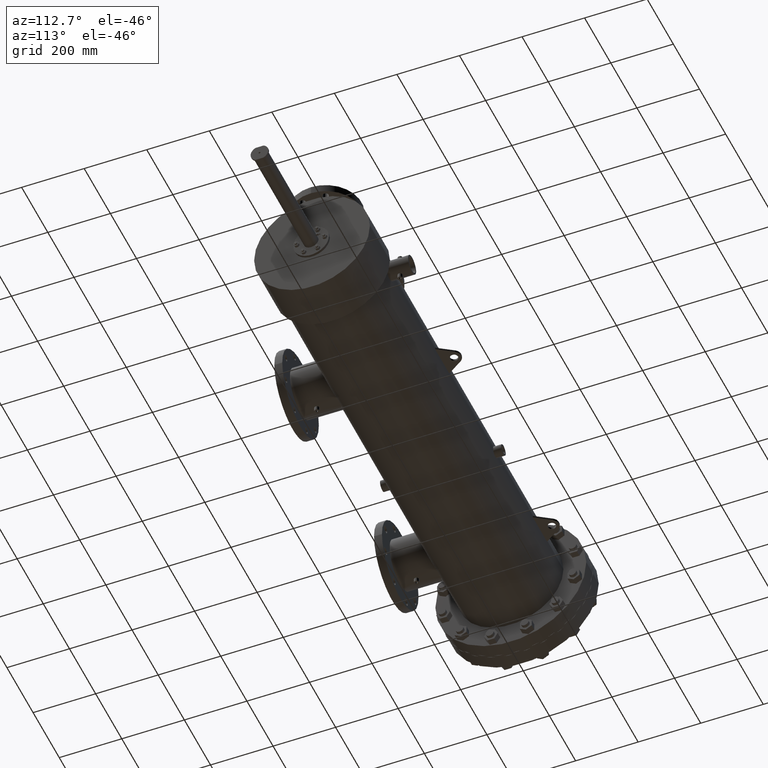
[diagram: clean part render]
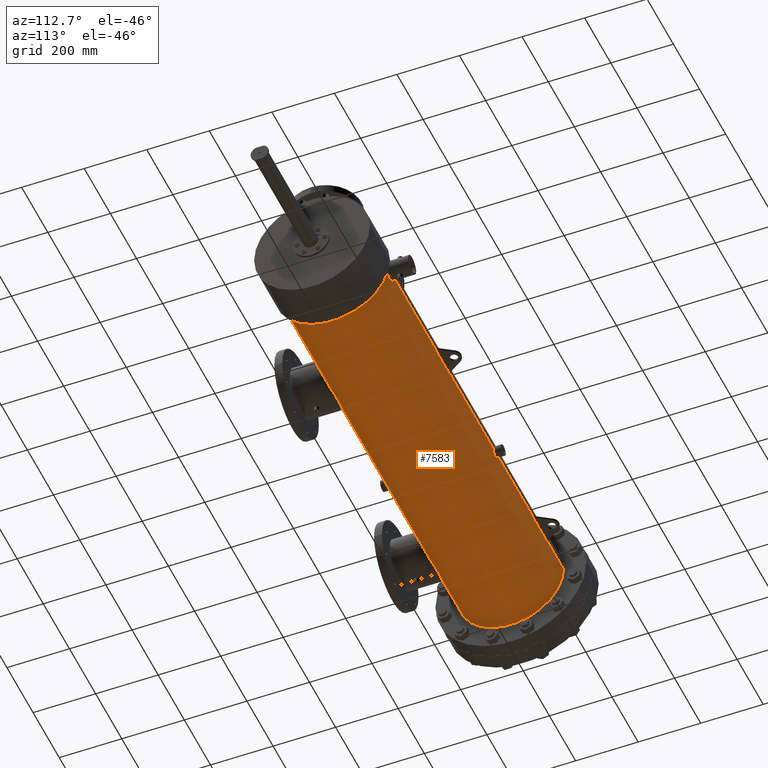
[diagram: same view with one face highlighted and labeled with its STEP entity id]
A machine part, auxiliary view. The second image highlights one B-rep face of the part: STEP entity #7583.
In plain terms, the highlighted cylindrical surface (partial cylindrical patch) has radius 168.225 mm, axis along (-1, 0, -0).
Its self-contained STEP definition (entity closure, byte-faithful):
#32 = CARTESIAN_POINT ( 'NONE',  ( 23.50488859684173804, -6.620102290366491005, -6.032487668760175558E-24 ) ) ;
#82 = CARTESIAN_POINT ( 'NONE',  ( 56.08674554668400702, 6.520454044656337267, -1.177501087345410591 ) ) ;
#90 = CARTESIAN_POINT ( 'NONE',  ( -3.560000048720177279, -6.620102290366491005, 0.0000000000000000000 ) ) ;
#113 = CARTESIAN_POINT ( 'NONE',  ( 41.61151093272998480, -5.797475832359252124, -3.196850393700785276 ) ) ;
#131 = CARTESIAN_POINT ( 'NONE',  ( 23.50488859684173804, 6.625966594306465396, 8.110877930450264990E-16 ) ) ;
#132 = CARTESIAN_POINT ( 'NONE',  ( 8.458497499643724993, -6.599050712015190001, -0.5302748627339023413 ) ) ;
#162 = CARTESIAN_POINT ( 'NONE',  ( 54.97152174659160551, 6.578759170063835704, -0.7899529883813617426 ) ) ;
#172 = VERTEX_POINT ( 'NONE', #20373 ) ;
#190 = CARTESIAN_POINT ( 'NONE',  ( 41.50584512929513892, -5.797475832359253012, -3.196850393700785276 ) ) ;
#205 = CARTESIAN_POINT ( 'NONE',  ( 23.97743471108273638, 6.592986842050819085, -0.6601581762026514921 ) ) ;
#206 = CARTESIAN_POINT ( 'NONE',  ( 24.44744687340119782, -6.587888219321350824, -0.6524945692989182477 ) ) ;
#232 = CARTESIAN_POINT ( 'NONE',  ( 57.06061548861068644, 6.624570948040195972, -0.1373760742247549516 ) ) ;
#259 = CARTESIAN_POINT ( 'NONE',  ( 41.82262287730102912, -5.800358885863328595, -3.191636252119037565 ) ) ;
#265 = ORIENTED_EDGE ( 'NONE', *, *, #763, .F. ) ;
#283 = CARTESIAN_POINT ( 'NONE',  ( 23.74128854975237601, 6.605202361473962114, -0.5250247153202211026 ) ) ;
#300 =( BOUNDED_CURVE ( )  B_SPLINE_CURVE ( 3, ( #17288, #11953, #6506, #19174 ),
 .UNSPECIFIED., .F., .T. ) 
 B_SPLINE_CURVE_WITH_KNOTS ( ( 4, 4 ),
 ( 6.264310662435097043, 6.283185307179586232 ),
 .UNSPECIFIED. ) 
 CURVE ( )  GEOMETRIC_REPRESENTATION_ITEM ( )  RATIONAL_B_SPLINE_CURVE ( ( 1.000000000000000000, 0.9999703125358196942, 0.9999703125358196942, 1.000000000000000000 ) ) 
 REPRESENTATION_ITEM ( '' )  );
#310 = CARTESIAN_POINT ( 'NONE',  ( 56.18281250892540157, 6.523909394751140844, -1.158310990636541637 ) ) ;
#336 = CARTESIAN_POINT ( 'NONE',  ( 42.11298669847418097, -5.819053629985806886, -3.157386128076007381 ) ) ;
#387 = CARTESIAN_POINT ( 'NONE',  ( 56.25741023164413690, 6.527948847442829106, -1.135635292516765649 ) ) ;
#413 = CARTESIAN_POINT ( 'NONE',  ( 42.13940472002043691, -5.821389419539924504, -3.153076439821033361 ) ) ;
#417 = EDGE_CURVE ( 'NONE', #20144, #17076, #3465, .T. ) ;
#436 = CARTESIAN_POINT ( 'NONE',  ( 23.50941262865929460, 6.625486252460868641, -0.09137433679954110044 ) ) ;
#472 = CARTESIAN_POINT ( 'NONE',  ( 54.67466053902920464, 6.625966594306467172, -0.01976735570703604117 ) ) ;
#476 = CARTESIAN_POINT ( 'NONE',  ( 23.54158097512100412, -6.616338944060670357, -0.2243047589684323551 ) ) ;
#533 = CARTESIAN_POINT ( 'NONE',  ( 8.848901996202322096, -6.421611165752963757, -1.612041120261620497 ) ) ;
#560 = CARTESIAN_POINT ( 'NONE',  ( 23.77727731653486742, -6.596979895608064304, -0.5531363833927316342 ) ) ;
#579 = CARTESIAN_POINT ( 'NONE',  ( 44.51818473635211149, -6.484985415012319621, -1.331861133549546050 ) ) ;
#580 = CARTESIAN_POINT ( 'NONE',  ( 57.13510650272986169, -6.620102290366491005, 0.0000000000000000000 ) ) ;
#616 = DIRECTION ( 'NONE',  ( -1.000000000000000000, 6.844189882992511126E-19, -0.0000000000000000000 ) ) ;
#684 = CARTESIAN_POINT ( 'NONE',  ( 24.87493807584727534, -6.617652266591466770, -0.1814460603054542376 ) ) ;
#763 = EDGE_CURVE ( 'NONE', #10833, #6770, #14061, .T. ) ;
#765 = CARTESIAN_POINT ( 'NONE',  ( 24.89858938424331569, -6.620102290366490116, -0.04604400683641205611 ) ) ;
#776 = FACE_OUTER_BOUND ( 'NONE', #7104, .T. ) ;
#778 = CARTESIAN_POINT ( 'NONE',  ( -3.560000048720177279, 6.625966594306465396, 8.110877930450044109E-16 ) ) ;
#826 = EDGE_CURVE ( 'NONE', #3377, #20319, #16651, .T. ) ;
#902 = B_SPLINE_CURVE_WITH_KNOTS ( 'NONE', 3,
 ( #14520, #7324, #12711, #7171, #7089, #7246, #1819, #3836, #21327, #16308, #8966, #9046, #23119, #21482, #1746, #10778, #162, #16145, #15980, #3540, #5475, #19800, #21558, #12635, #14744, #14893, #9508, #4226, #5699, #16383, #472, #9432 ),
 .UNSPECIFIED., .F., .F.,
 ( 4, 2, 2, 2, 2, 2, 2, 2, 2, 2, 2, 2, 2, 2, 2, 4 ),
 ( 0.09523987758173137197, 0.1011929631675068386, 0.1026812345639507018, 0.1041695059603945650, 0.1071460487532816808, 0.1101225915461687827, 0.1130991343390558845, 0.1190522199248306434, 0.1220287627177180229, 0.1250053055106054023, 0.1309583910963805220, 0.1339349338892680819, 0.1369114766821556417, 0.1398880194750431738, 0.1413762908714869537, 0.1428645622679307337 ),
 .UNSPECIFIED. ) ;
#1143 = DIRECTION ( 'NONE',  ( -1.000000000000000000, 6.844189882992511126E-19, -0.0000000000000000000 ) ) ;
#1171 = CARTESIAN_POINT ( 'NONE',  ( 38.43324024563086994, -6.611153716373257438, -0.3452022212319473260 ) ) ;
#1207 = CARTESIAN_POINT ( 'NONE',  ( 38.12056066008186406, 6.625966594306465396, 8.110877930450044109E-16 ) ) ;
#1235 = EDGE_CURVE ( 'NONE', #10833, #2716, #4627, .T. ) ;
#1245 = CARTESIAN_POINT ( 'NONE',  ( 38.70563028805842265, -6.484630072089784036, -1.333589315135872866 ) ) ;
#1328 = CARTESIAN_POINT ( 'NONE',  ( 38.45849749964372677, -6.599050712015188225, -0.5302748627339016751 ) ) ;
#1341 = CARTESIAN_POINT ( 'NONE',  ( 24.89858938424332635, 6.625966594306465396, 8.110878030419603920E-16 ) ) ;
#1373 = VERTEX_POINT ( 'NONE', #32 ) ;
#1444 = CARTESIAN_POINT ( 'NONE',  ( 24.24728875340355216, 6.589322390407926555, -0.6957398949591004911 ) ) ;
#1569 = CARTESIAN_POINT ( 'NONE',  ( 14.80836132643077008, -6.620102290366491893, -0.02680007013940666205 ) ) ;
#1582 = CARTESIAN_POINT ( 'NONE',  ( 8.682360274922663379, 6.625573349192247719, -0.08333766296635791715 ) ) ;
#1645 = CARTESIAN_POINT ( 'NONE',  ( 11.61151093272998125, -5.797475832359250347, -3.196850393700789272 ) ) ;
#1658 = CARTESIAN_POINT ( 'NONE',  ( 8.681841644538836889, 6.624786893987155700, -0.1250000000000000000 ) ) ;
#1711 = CARTESIAN_POINT ( 'NONE',  ( 11.61151093272998125, -5.797475832359250347, -3.196850393700789272 ) ) ;
#1726 = CARTESIAN_POINT ( 'NONE',  ( 14.20562189244916240, -6.350917350832347985, -1.871112581533346253 ) ) ;
#1746 = CARTESIAN_POINT ( 'NONE',  ( 55.08070038371693045, 6.564526436030624801, -0.9017531032061640861 ) ) ;
#1768 = CARTESIAN_POINT ( 'NONE',  ( 39.42786742657646215, -6.194519534056561305, -2.337127592951408150 ) ) ;
#1800 = CARTESIAN_POINT ( 'NONE',  ( 14.14418897179037771, -6.326015614562388478, -1.953443615166007508 ) ) ;
#1819 = CARTESIAN_POINT ( 'NONE',  ( 55.54214674748667591, 6.525222015275412346, -1.150805632916530374 ) ) ;
#1875 = VECTOR ( 'NONE', #17906, 39.37007874015748143 ) ;
#1885 = CARTESIAN_POINT ( 'NONE',  ( 13.68125322271369981, -6.155570517251900853, -2.436939225560617039 ) ) ;
#1896 = CARTESIAN_POINT ( 'NONE',  ( 56.84460591252498318, 6.589174646119801082, -0.6978916550197512558 ) ) ;
#1915 = VECTOR ( 'NONE', #21263, 39.37007874015748143 ) ;
#1932 = CARTESIAN_POINT ( 'NONE',  ( 39.31841610319980873, -6.234203456254958198, -2.228053302658159485 ) ) ;
#1938 = DIRECTION ( 'NONE',  ( -1.000000000000000000, 6.844189882992511126E-19, -0.0000000000000000000 ) ) ;
#1951 = CARTESIAN_POINT ( 'NONE',  ( 8.442913355982932799, -6.606510702401973134, -0.4249192809880080746 ) ) ;
#1979 = CARTESIAN_POINT ( 'NONE',  ( 57.06836132643076809, 6.625966594306465396, -0.03911332988375494646 ) ) ;
#2003 = EDGE_CURVE ( 'NONE', #1373, #12685, #19336, .T. ) ;
#2026 = CARTESIAN_POINT ( 'NONE',  ( 23.91408418097299915, 6.595449943625925293, -0.6351146320809101242 ) ) ;
#2095 = CARTESIAN_POINT ( 'NONE',  ( 24.66138846624714631, -6.599336338511792910, -0.5242604568618984828 ) ) ;
#2119 = CARTESIAN_POINT ( 'NONE',  ( 57.06836132643076098, 6.625966594306465396, 8.110878010276941979E-16 ) ) ;
#2179 = CARTESIAN_POINT ( 'NONE',  ( 23.83352051008775518, 6.599462144512529882, -0.5920647792020360400 ) ) ;
#2231 = CARTESIAN_POINT ( 'NONE',  ( 43.72031615880174371, -6.168818014587252208, -2.403220672507317524 ) ) ;
#2304 = CARTESIAN_POINT ( 'NONE',  ( 42.45004939783472508, -5.856940381825093134, -3.086694245763230260 ) ) ;
#2330 = CARTESIAN_POINT ( 'NONE',  ( 24.89407026535599243, -6.619622278263719295, -0.09157741047934143952 ) ) ;
#2385 = CARTESIAN_POINT ( 'NONE',  ( 42.03378857251338729, -5.812588637926357826, -3.169287727140987165 ) ) ;
#2519 = CARTESIAN_POINT ( 'NONE',  ( 23.56662467264301952, -6.613885827898545067, -0.2876555103999025031 ) ) ;
#2591 = VERTEX_POINT ( 'NONE', #10228 ) ;
#2716 = VERTEX_POINT ( 'NONE', #3688 ) ;
#2776 = EDGE_CURVE ( 'NONE', #15661, #8361, #12442, .T. ) ;
#2784 = VERTEX_POINT ( 'NONE', #21776 ) ;
#2941 = AXIS2_PLACEMENT_3D ( 'NONE', #23012, #17718, #6782 ) ;
#2982 = CARTESIAN_POINT ( 'NONE',  ( 38.41990159771538771, -6.617567481049119849, -0.2120127386396016000 ) ) ;
#3082 = DIRECTION ( 'NONE',  ( -1.000000000000000000, 6.844189882992511126E-19, -0.0000000000000000000 ) ) ;
#3159 = CARTESIAN_POINT ( 'NONE',  ( -3.560000048720177279, 6.625966594306465396, 8.110877930450044109E-16 ) ) ;
#3172 = CARTESIAN_POINT ( 'NONE',  ( 24.51037399254640547, 6.596401265655883250, -0.6251940956072455924 ) ) ;
#3184 = CARTESIAN_POINT ( 'NONE',  ( 42.37171068800930129, 6.625966594306467172, -0.04166975928529399742 ) ) ;
#3377 = VERTEX_POINT ( 'NONE', #21530 ) ;
#3439 = CARTESIAN_POINT ( 'NONE',  ( 8.446569208148059005, -6.604758572881263667, -0.4513363430929743791 ) ) ;
#3465 =( BOUNDED_CURVE ( )  B_SPLINE_CURVE ( 3, ( #1207, #8299, #13988, #20823 ),
 .UNSPECIFIED., .F., .F. ) 
 B_SPLINE_CURVE_WITH_KNOTS ( ( 4, 4 ),
 ( 3.141592653589793116, 3.160467298334282304 ),
 .UNSPECIFIED. ) 
 CURVE ( )  GEOMETRIC_REPRESENTATION_ITEM ( )  RATIONAL_B_SPLINE_CURVE ( ( 1.000000000000000000, 0.9999703125358196942, 0.9999703125358196942, 1.000000000000000000 ) ) 
 REPRESENTATION_ITEM ( '' )  );
#3490 = CARTESIAN_POINT ( 'NONE',  ( 39.87367233311466919, -6.052076936726394685, -2.683735438995472844 ) ) ;
#3508 = CARTESIAN_POINT ( 'NONE',  ( 10.57302537146444266, -5.888882388096578602, -3.025276955871192275 ) ) ;
#3524 = CARTESIAN_POINT ( 'NONE',  ( 13.21989014815742003, -6.015685269396247925, -2.764743509177873815 ) ) ;
#3540 = CARTESIAN_POINT ( 'NONE',  ( 54.83311750035764476, 6.599033928541453875, -0.6002302114898547813 ) ) ;
#3586 = LINE ( 'NONE', #5116, #1915 ) ;
#3603 = CARTESIAN_POINT ( 'NONE',  ( 14.72332027173323254, -6.579449509813998453, -0.7400193279973804605 ) ) ;
#3629 = CIRCLE ( 'NONE', #13687, 6.623034442336478200 ) ;
#3642 = CARTESIAN_POINT ( 'NONE',  ( 40.00653301531651351, -6.015277614651655114, -2.765249717527959561 ) ) ;
#3663 = CARTESIAN_POINT ( 'NONE',  ( 10.47527249311594844, -5.906974090967560542, -2.989914688120853370 ) ) ;
#3673 = CARTESIAN_POINT ( 'NONE',  ( 14.47290145271272088, -6.464824604676132402, -1.426552127290123817 ) ) ;
#3684 = CARTESIAN_POINT ( 'NONE',  ( 56.78425670235407807, 6.580552458167434615, -0.7744204111836680005 ) ) ;
#3688 = CARTESIAN_POINT ( 'NONE',  ( 3.750000000000002220, -6.620102290366490116, 0.0000000000000000000 ) ) ;
#3713 = CARTESIAN_POINT ( 'NONE',  ( 40.18988406736141172, -5.968487511225737840, -2.865258985346507803 ) ) ;
#3729 = CARTESIAN_POINT ( 'NONE',  ( 24.35986291008730120, -6.585200551086909826, -0.6790526532030990436 ) ) ;
#3753 = CARTESIAN_POINT ( 'NONE',  ( 56.41908043817665686, 6.539878593217029135, -1.064426948728601108 ) ) ;
#3786 = CARTESIAN_POINT ( 'NONE',  ( 39.01800945257920716, -6.350667287042273124, -1.871971490222196222 ) ) ;
#3791 = CARTESIAN_POINT ( 'NONE',  ( -3.560000048720177279, -6.620102290366491005, 0.0000000000000000000 ) ) ;
#3801 = CARTESIAN_POINT ( 'NONE',  ( 23.64860357056294760, 6.612374843741463337, -0.4244629343774455332 ) ) ;
#3825 = VERTEX_POINT ( 'NONE', #580 ) ;
#3829 = CARTESIAN_POINT ( 'NONE',  ( 56.90800261172798002, 6.598848713713838521, -0.5997277398349427635 ) ) ;
#3836 = CARTESIAN_POINT ( 'NONE',  ( 55.48593658519036609, 6.528221546079866933, -1.133718356959874773 ) ) ;
#3910 = CARTESIAN_POINT ( 'NONE',  ( 56.02838857458402089, 6.518787042648118479, -1.186688244064823872 ) ) ;
#3934 = CARTESIAN_POINT ( 'NONE',  ( 43.08242669401168001, -5.980909486670548780, -2.838832285646996301 ) ) ;
#4067 = CARTESIAN_POINT ( 'NONE',  ( 23.95584344390548281, -6.587895188303220628, -0.6524243268700191667 ) ) ;
#4074 = ORIENTED_EDGE ( 'NONE', *, *, #8452, .T. ) ;
#4082 = CARTESIAN_POINT ( 'NONE',  ( 44.69735817273798517, -6.567185395175028084, -0.8416167304808501726 ) ) ;
#4153 = CARTESIAN_POINT ( 'NONE',  ( 23.89255311788790337, -6.590458726938506651, -0.6261718383470139537 ) ) ;
#4169 = CARTESIAN_POINT ( 'NONE',  ( 42.89330600153515860, -5.937228280313488149, -2.929093177916498369 ) ) ;
#4185 = B_SPLINE_CURVE_WITH_KNOTS ( 'NONE', 3,
 ( #16430, #16189, #18030, #12834, #14489, #205, #12675, #2026, #21902, #20141, #2179, #18185, #283, #7446, #12907, #3801, #19841, #7293, #21740, #9082, #16271, #5596, #18108, #436, #14417, #131 ),
 .UNSPECIFIED., .F., .F.,
 ( 4, 2, 2, 2, 2, 2, 2, 2, 2, 2, 2, 2, 4 ),
 ( 0.05537655679381945500, 0.05883842627888277027, 0.06056936102141442790, 0.06230029576394608554, 0.06403123050647774317, 0.06576216524900940774, 0.06922403473407272301, 0.07095496947660437370, 0.07268590421913603827, 0.07614777370419933966, 0.07787870844673105974, 0.07960964318926277983, 0.08307151267432628938 ),
 .UNSPECIFIED. ) ;
#4226 = CARTESIAN_POINT ( 'NONE',  ( 54.67856430937618484, 6.625261982983682074, -0.09855547957554304517 ) ) ;
#4230 = CARTESIAN_POINT ( 'NONE',  ( 23.50488859684173804, -6.620102290366491005, -6.032487668760175558E-24 ) ) ;
#4415 = EDGE_CURVE ( 'NONE', #9405, #2784, #9698, .T. ) ;
#4627 = LINE ( 'NONE', #3791, #11870 ) ;
#4770 = CARTESIAN_POINT ( 'NONE',  ( 38.46773001366667444, -6.594643624306864460, -0.5824838443216308059 ) ) ;
#4874 = CARTESIAN_POINT ( 'NONE',  ( 24.62677159653190628, 6.602797274206952949, -0.5540816505432620831 ) ) ;
#4945 = CARTESIAN_POINT ( 'NONE',  ( 24.66194318814428499, 6.605183341943915210, -0.5252884271496975899 ) ) ;
#4951 = B_SPLINE_CURVE_WITH_KNOTS ( 'NONE', 3,
 ( #2119, #1979, #21772, #232, #14590, #16218, #12859, #10769, #7392, #17900, #7163, #3829, #5469, #1896, #14367, #3684, #16058, #11083, #16302, #18057, #14445, #12703, #18213, #3753, #16139, #5386, #21693, #387, #310, #82, #17982, #3910, #7242, #5694, #7320, #12630 ),
 .UNSPECIFIED., .F., .F.,
 ( 4, 2, 2, 2, 2, 2, 2, 2, 2, 2, 2, 2, 2, 2, 2, 2, 2, 4 ),
 ( 0.04763153616215690112, 0.05060705750088081989, 0.05209481817024277928, 0.05358257883960473866, 0.05953362151705244437, 0.06250914285577630070, 0.06548466419450015008, 0.06846018553322399947, 0.06994794620258593110, 0.07143570687194783497, 0.07738674954939414596, 0.08036227088811730146, 0.08185003155747858083, 0.08333779222683987409, 0.08928883490428562997, 0.09077659557364722853, 0.09226435624300882710, 0.09523987758173137197 ),
 .UNSPECIFIED. ) ;
#5020 = ORIENTED_EDGE ( 'NONE', *, *, #5941, .T. ) ;
#5073 = LINE ( 'NONE', #19938, #10636 ) ;
#5077 = VERTEX_POINT ( 'NONE', #16628 ) ;
#5110 = CARTESIAN_POINT ( 'NONE',  ( 24.20173899054253397, 6.589204599506174986, -0.6968503937007914928 ) ) ;
#5116 = CARTESIAN_POINT ( 'NONE',  ( -3.560000048720177279, 6.624786893987156589, -0.1250000000000000000 ) ) ;
#5157 = CARTESIAN_POINT ( 'NONE',  ( 12.89330600153515860, -5.937228280313484596, -2.929093177916500590 ) ) ;
#5219 = CARTESIAN_POINT ( 'NONE',  ( 10.28370182087450857, -5.946776332164515289, -2.909905599219831718 ) ) ;
#5235 = CARTESIAN_POINT ( 'NONE',  ( 14.60022240417577599, -6.522083639152256751, -1.139466861672859155 ) ) ;
#5273 = CARTESIAN_POINT ( 'NONE',  ( 39.66255782787121831, -6.115691008554177799, -2.536130137333550305 ) ) ;
#5292 = CARTESIAN_POINT ( 'NONE',  ( 9.212923191392265565, -6.273763750465422007, -2.114075685226752821 ) ) ;
#5305 = CARTESIAN_POINT ( 'NONE',  ( 13.30837134422615087, -6.040029807371587012, -2.711295546361656150 ) ) ;
#5386 = CARTESIAN_POINT ( 'NONE',  ( 56.36580444351619690, 6.535630322443775952, -1.090189352248174481 ) ) ;
#5469 = CARTESIAN_POINT ( 'NONE',  ( 56.88790432586438328, 6.595710919807552308, -0.6331753882149793178 ) ) ;
#5475 = CARTESIAN_POINT ( 'NONE',  ( 54.79630088181179559, 6.605002118597796290, -0.5315570983403694605 ) ) ;
#5506 = CARTESIAN_POINT ( 'NONE',  ( 41.24174663294270005, -5.809010479924303638, -3.175837537480972639 ) ) ;
#5596 = CARTESIAN_POINT ( 'NONE',  ( 23.52823333913627124, 6.623547752631231411, -0.1803181764360660411 ) ) ;
#5694 = CARTESIAN_POINT ( 'NONE',  ( 55.94978134756023991, 6.517279288454623121, -1.194940222424998311 ) ) ;
#5699 = CARTESIAN_POINT ( 'NONE',  ( 54.67710575048949551, 6.625525086542813469, -0.07896513666805292375 ) ) ;
#5719 = CARTESIAN_POINT ( 'NONE',  ( 44.32075279567465742, -6.398785063344834434, -1.700141903540910215 ) ) ;
#5884 = CARTESIAN_POINT ( 'NONE',  ( 44.44899517077081441, -6.454276974756568031, -1.473522469255135636 ) ) ;
#5941 = EDGE_CURVE ( 'NONE', #1373, #13715, #13386, .T. ) ;
#5966 = CARTESIAN_POINT ( 'NONE',  ( 44.37445155461280422, -6.421752598789502997, -1.611503296600599766 ) ) ;
#6044 = DIRECTION ( 'NONE',  ( -1.000000000000000000, 6.844189882992511126E-19, -0.0000000000000000000 ) ) ;
#6311 = ORIENTED_EDGE ( 'NONE', *, *, #20767, .F. ) ;
#6487 = CARTESIAN_POINT ( 'NONE',  ( 38.41466053902919953, -6.620102290366491005, 1.519969738376016713E-22 ) ) ;
#6506 = CARTESIAN_POINT ( 'NONE',  ( 12.93335896842818045, 6.625966594306465396, -0.04166975928529399742 ) ) ;
#6559 = CARTESIAN_POINT ( 'NONE',  ( 38.58696560143429366, -6.538616588634496907, -1.040679369293838308 ) ) ;
#6595 = VECTOR ( 'NONE', #1143, 39.37007874015748143 ) ;
#6667 = CARTESIAN_POINT ( 'NONE',  ( 24.75579764423899576, 6.612420361877255459, -0.4250632073104086972 ) ) ;
#6758 = CARTESIAN_POINT ( 'NONE',  ( 42.37248864511661850, 6.624786893987160141, -0.1250000000000000000 ) ) ;
#6770 = VERTEX_POINT ( 'NONE', #19017 ) ;
#6782 = DIRECTION ( 'NONE',  ( 0.0000000000000000000, -1.000000000000000000, 0.0000000000000000000 ) ) ;
#6795 = ORIENTED_EDGE ( 'NONE', *, *, #10013, .F. ) ;
#6893 = B_SPLINE_CURVE_WITH_KNOTS ( 'NONE', 3,
 ( #9008, #18109, #11057, #3729, #10901, #19843, #206, #7367, #19913, #9164, #12760, #2095, #16350, #18186, #7447, #11370, #18584, #13071, #11444, #18668, #15091, #684, #20380, #2330, #765, #14859 ),
 .UNSPECIFIED., .F., .F.,
 ( 4, 2, 2, 2, 2, 2, 2, 2, 2, 2, 2, 2, 4 ),
 ( 0.08307154328380571273, 0.08653011302038593477, 0.08825939788867588620, 0.08998868275696583763, 0.09344725249354572660, 0.09517653736183566415, 0.09690582223012561558, 0.1003643919667055046, 0.1020936768349955392, 0.1038229617032855739, 0.1055522465715756086, 0.1072815314398656433, 0.1107401011764457682 ),
 .UNSPECIFIED. ) ;
#6939 = CARTESIAN_POINT ( 'NONE',  ( 12.74861785773684630, -5.907130728939075759, -2.989610726383580275 ) ) ;
#6962 = CARTESIAN_POINT ( 'NONE',  ( 24.89858938424332990, 6.625966594306465396, -0.02273825071248093688 ) ) ;
#6998 = CARTESIAN_POINT ( 'NONE',  ( 11.10972238752540164, -5.819080559180713763, -3.157336477522833640 ) ) ;
#7008 = CARTESIAN_POINT ( 'NONE',  ( 14.78682393397190431, -6.609731697701221265, -0.3743130699991493726 ) ) ;
#7015 = CARTESIAN_POINT ( 'NONE',  ( 38.12056066008186406, 6.625966594306465396, 8.110877930450044109E-16 ) ) ;
#7039 = CARTESIAN_POINT ( 'NONE',  ( 39.50398265977398182, -6.168032650787603544, -2.405971499648568823 ) ) ;
#7066 = EDGE_CURVE ( 'NONE', #6770, #13715, #20209, .T. ) ;
#7089 = CARTESIAN_POINT ( 'NONE',  ( 55.59927705563403322, 6.522585620764450809, -1.165644710496367642 ) ) ;
#7104 = EDGE_LOOP ( 'NONE', ( #6311, #10974, #20552, #20819, #20500, #4074, #12422, #21362, #5020, #12594, #265, #21191, #10039, #14490, #17306, #20024, #13627, #6795, #17503, #12683, #15216, #10946, #7477, #23049, #7890, #8939, #13377 ) ) ;
#7136 = CARTESIAN_POINT ( 'NONE',  ( 8.525169606556019630, -6.567417020356452362, -0.8398721504414820016 ) ) ;
#7152 = CARTESIAN_POINT ( 'NONE',  ( 14.37445155461279889, -6.421752598789504773, -1.611503296600603985 ) ) ;
#7163 = CARTESIAN_POINT ( 'NONE',  ( 56.94503414704220745, 6.604769197862747632, -0.5305999160311978269 ) ) ;
#7171 = CARTESIAN_POINT ( 'NONE',  ( 55.61862417412613979, 6.521805632311894918, -1.169995340906883285 ) ) ;
#7194 = CARTESIAN_POINT ( 'NONE',  ( 40.28370182087452633, -5.946776332164518841, -2.909905599219828165 ) ) ;
#7214 = CARTESIAN_POINT ( 'NONE',  ( 9.178800249102392783, -6.286892343632763946, -2.074718771202328504 ) ) ;
#7228 = CARTESIAN_POINT ( 'NONE',  ( 12.11298669847417564, -5.819053629985802445, -3.157386128076013154 ) ) ;
#7242 = CARTESIAN_POINT ( 'NONE',  ( 56.00869344981742159, 6.518342185252356202, -1.189126235491232420 ) ) ;
#7246 = CARTESIAN_POINT ( 'NONE',  ( 55.56106612254073696, 6.524292903339172334, -1.156054883979743542 ) ) ;
#7293 = CARTESIAN_POINT ( 'NONE',  ( 23.59698265042441179, 6.616862912112082107, -0.3492046883289097736 ) ) ;
#7320 = CARTESIAN_POINT ( 'NONE',  ( 55.91060050235151380, 6.516927420579990304, -1.196850393700786608 ) ) ;
#7324 = CARTESIAN_POINT ( 'NONE',  ( 55.79330495570007287, 6.516927420579994745, -1.196850393700786386 ) ) ;
#7367 = CARTESIAN_POINT ( 'NONE',  ( 24.51070909294916333, -6.590448731641868285, -0.6262764316736365577 ) ) ;
#7392 = CARTESIAN_POINT ( 'NONE',  ( 57.00714372456905465, 6.615111575494736940, -0.3859467219338633126 ) ) ;
#7446 = CARTESIAN_POINT ( 'NONE',  ( 23.69307365219277273, 6.608798357021312242, -0.4768399280602145796 ) ) ;
#7447 = CARTESIAN_POINT ( 'NONE',  ( 24.75527233485157552, -6.606511099870058246, -0.4257895298509038473 ) ) ;
#7477 = ORIENTED_EDGE ( 'NONE', *, *, #13124, .T. ) ;
#7501 = CARTESIAN_POINT ( 'NONE',  ( 44.79758363265820265, -6.614905091580230767, -0.2677007302946285972 ) ) ;
#7566 = CARTESIAN_POINT ( 'NONE',  ( 23.50930315304615092, -6.619633300352615990, -0.09075632043799160276 ) ) ;
#7579 = CARTESIAN_POINT ( 'NONE',  ( 42.19190613007618396, -5.826382430620181019, -3.143835921436073821 ) ) ;
#7583 = ADVANCED_FACE ( 'NONE', ( #776 ), #20634, .T. ) ;
#7638 = CARTESIAN_POINT ( 'NONE',  ( 24.04351779528195721, -6.585202819976648136, -0.6790306833408495946 ) ) ;
#7656 = CARTESIAN_POINT ( 'NONE',  ( 42.34803086185882393, -5.843135365262594583, -3.112659246940586932 ) ) ;
#7728 = EDGE_CURVE ( 'NONE', #172, #20998, #4185, .T. ) ;
#7736 = CARTESIAN_POINT ( 'NONE',  ( 44.75483863664458539, -6.594427652335860479, -0.5849160346673147881 ) ) ;
#7791 = CARTESIAN_POINT ( 'NONE',  ( 23.52270466233812130, -6.618249965225749598, -0.1582364029163042807 ) ) ;
#7877 = CARTESIAN_POINT ( 'NONE',  ( -3.560000048720177279, 6.625966594306465396, 8.110877930450044109E-16 ) ) ;
#7890 = ORIENTED_EDGE ( 'NONE', *, *, #826, .F. ) ;
#8030 = EDGE_CURVE ( 'NONE', #3825, #16692, #9687, .T. ) ;
#8179 = EDGE_CURVE ( 'NONE', #2784, #16692, #16895, .T. ) ;
#8299 = CARTESIAN_POINT ( 'NONE',  ( 38.12056066008186406, 6.625966594306468060, -0.04166975928529318557 ) ) ;
#8361 = VERTEX_POINT ( 'NONE', #21244 ) ;
#8451 = CARTESIAN_POINT ( 'NONE',  ( 24.31576265031717909, 6.590153681634959959, -0.6878356054903982386 ) ) ;
#8452 = EDGE_CURVE ( 'NONE', #9405, #22916, #14427, .T. ) ;
#8464 = CARTESIAN_POINT ( 'NONE',  ( 42.37197001474383029, 6.625573349192246830, -0.08333766296636031801 ) ) ;
#8474 = EDGE_CURVE ( 'NONE', #8615, #3377, #902, .T. ) ;
#8604 = CARTESIAN_POINT ( 'NONE',  ( 24.86301969135129752, 6.622295744575479759, -0.2244858484711766133 ) ) ;
#8615 = VERTEX_POINT ( 'NONE', #16549 ) ;
#8731 = CARTESIAN_POINT ( 'NONE',  ( 14.76410489499673240, -6.598850350189208847, -0.5327629691538463552 ) ) ;
#8785 = CARTESIAN_POINT ( 'NONE',  ( 10.87448458971577381, -5.843198363072066748, -3.112541144290206230 ) ) ;
#8841 = CARTESIAN_POINT ( 'NONE',  ( 40.87448458971579157, -5.843198363072071189, -3.112541144290204009 ) ) ;
#8866 = CARTESIAN_POINT ( 'NONE',  ( 11.18893440935740102, -5.812610266661452307, -3.169248060401546496 ) ) ;
#8879 = CARTESIAN_POINT ( 'NONE',  ( 13.56186998739250171, -6.116135588099355758, -2.535067254112475688 ) ) ;
#8920 = CARTESIAN_POINT ( 'NONE',  ( 41.10972238752542296, -5.819080559180715539, -3.157336477522828755 ) ) ;
#8931 = CARTESIAN_POINT ( 'NONE',  ( 8.419901597715380603, -6.617567481049118960, -0.2120127386396023217 ) ) ;
#8939 = ORIENTED_EDGE ( 'NONE', *, *, #8474, .F. ) ;
#8942 = CARTESIAN_POINT ( 'NONE',  ( 9.662557827871200544, -6.115691008554178687, -2.536130137333548973 ) ) ;
#8966 = CARTESIAN_POINT ( 'NONE',  ( 55.34183241852417012, 6.538336254917813228, -1.073978161162097100 ) ) ;
#8981 = CARTESIAN_POINT ( 'NONE',  ( 41.71705870118979931, -5.797475832359254788, -3.196850393700785276 ) ) ;
#8989 = CARTESIAN_POINT ( 'NONE',  ( 41.03069438824739734, -5.826424221805100778, -3.143758450183465225 ) ) ;
#9006 = DIRECTION ( 'NONE',  ( 0.0000000000000000000, -1.000000000000000000, 0.0000000000000000000 ) ) ;
#9008 = CARTESIAN_POINT ( 'NONE',  ( 24.20173899054253397, -6.583340295566199707, -0.6968503937007914928 ) ) ;
#9013 = CARTESIAN_POINT ( 'NONE',  ( 11.24174663294269649, -5.809010479924299197, -3.175837537480977524 ) ) ;
#9029 = CARTESIAN_POINT ( 'NONE',  ( 12.03378857251337841, -5.812588637926352497, -3.169287727140992050 ) ) ;
#9046 = CARTESIAN_POINT ( 'NONE',  ( 55.27267159389343476, 6.544304791879303806, -1.037005238813286212 ) ) ;
#9073 = CARTESIAN_POINT ( 'NONE',  ( 39.07982509045589836, -6.325612586826938610, -1.954780416357482897 ) ) ;
#9082 = CARTESIAN_POINT ( 'NONE',  ( 23.54931490926832538, 6.621433952318557914, -0.2458962095107923296 ) ) ;
#9100 = EDGE_CURVE ( 'NONE', #10671, #8615, #4951, .T. ) ;
#9136 = CARTESIAN_POINT ( 'NONE',  ( 44.78682393397190964, -6.609731697701221265, -0.3743130699991473742 ) ) ;
#9146 = CARTESIAN_POINT ( 'NONE',  ( 39.17880024910238745, -6.286892343632763946, -2.074718771202327172 ) ) ;
#9164 = CARTESIAN_POINT ( 'NONE',  ( 24.60747094967586079, -6.595798511263582853, -0.5670092910440472922 ) ) ;
#9212 = CARTESIAN_POINT ( 'NONE',  ( 44.63580946308924524, -6.538502934872273187, -1.041340630608978968 ) ) ;
#9271 = CARTESIAN_POINT ( 'NONE',  ( 24.20173899054253397, -6.583340295566199707, -0.6968503937007914928 ) ) ;
#9286 = CARTESIAN_POINT ( 'NONE',  ( 42.74861785773686762, -5.907130728939075759, -2.989610726383578498 ) ) ;
#9352 = CARTESIAN_POINT ( 'NONE',  ( 23.79573574413322490, -6.595815165191206475, -0.5668158871407742438 ) ) ;
#9371 = CARTESIAN_POINT ( 'NONE',  ( 43.79697658242517377, -6.195430594989031370, -2.333724271690309493 ) ) ;
#9405 = VERTEX_POINT ( 'NONE', #22615 ) ;
#9411 = CARTESIAN_POINT ( 'NONE',  ( 8.774649359661802706, -6.454003680879266902, -1.474712488055556214 ) ) ;
#9432 = CARTESIAN_POINT ( 'NONE',  ( 54.67466053902918333, 6.625966594306465396, 8.110874590699086323E-16 ) ) ;
#9450 = CARTESIAN_POINT ( 'NONE',  ( 44.01358413369899125, -6.274892108454148243, -2.111976407149990020 ) ) ;
#9508 = CARTESIAN_POINT ( 'NONE',  ( 54.68436274209908277, 6.624219090802059284, -0.1570537923103368649 ) ) ;
#9513 = CARTESIAN_POINT ( 'NONE',  ( 23.52832024192505855, -6.617674621461818951, -0.1806333834917245307 ) ) ;
#9589 = CARTESIAN_POINT ( 'NONE',  ( 23.64787905735141393, -6.606538467098292067, -0.4253704252420579257 ) ) ;
#9687 = LINE ( 'NONE', #13765, #13315 ) ;
#9698 = B_SPLINE_CURVE_WITH_KNOTS ( 'NONE', 3,
 ( #6487, #20939, #2982, #1171, #13642, #10204, #15414, #1328, #4770, #13801, #17264, #6559, #10137, #11936, #1245, #13726, #16174, #17845, #23059, #3786, #9073, #9146, #21581, #14400, #1932, #1768, #7039, #5273, #19751, #3490, #17773, #3642, #16094, #3713, #7194, #12358, #21424, #14324, #8841, #14157, #8989, #12588, #8920, #10885, #5506, #10566, #190, #113 ),
 .UNSPECIFIED., .F., .F.,
 ( 4, 2, 2, 2, 2, 2, 2, 2, 2, 2, 2, 2, 2, 2, 2, 2, 2, 2, 2, 2, 2, 2, 2, 4 ),
 ( 0.2579606276627495198, 0.2660141354868408858, 0.2680275124428637690, 0.2700408893988865966, 0.2740676433109323074, 0.2821211511350237289, 0.2901746589591152059, 0.2942014128711608612, 0.2982281667832065164, 0.3062816746072979934, 0.3143351824313894705, 0.3183619363434351257, 0.3223886902554807254, 0.3304421980795718139, 0.3384957059036628468, 0.3425224598157083911, 0.3465492137277538798, 0.3546027215518455233, 0.3626562293759371114, 0.3707097372000287550, 0.3727231141560516381, 0.3747364911120745212, 0.3787632450241210091, 0.3868167528482145956 ),
 .UNSPECIFIED. ) ;
#9975 = CARTESIAN_POINT ( 'NONE',  ( 12.93413692553549588, 6.624786893987153924, -0.1250000000000000000 ) ) ;
#10013 = EDGE_CURVE ( 'NONE', #20998, #5077, #15163, .T. ) ;
#10039 = ORIENTED_EDGE ( 'NONE', *, *, #21105, .F. ) ;
#10137 = CARTESIAN_POINT ( 'NONE',  ( 38.62278168856904159, -6.522089865142308263, -1.139505367603345531 ) ) ;
#10150 = VERTEX_POINT ( 'NONE', #1341 ) ;
#10181 = CARTESIAN_POINT ( 'NONE',  ( 14.80836132643077008, -6.620102290366491005, 1.330212476317719293E-16 ) ) ;
#10204 = CARTESIAN_POINT ( 'NONE',  ( 38.44291335598293813, -6.606510702401974910, -0.4249192809880071309 ) ) ;
#10210 = LINE ( 'NONE', #20390, #6595 ) ;
#10228 = CARTESIAN_POINT ( 'NONE',  ( 42.37248864511661850, 6.624786893987160141, -0.1250000000000000000 ) ) ;
#10241 = CARTESIAN_POINT ( 'NONE',  ( 24.89858938424332635, 6.625966594306465396, 8.110878030419603920E-16 ) ) ;
#10396 = CARTESIAN_POINT ( 'NONE',  ( 24.42620428998377591, 6.592893629214123585, -0.6612875556258150933 ) ) ;
#10444 = CARTESIAN_POINT ( 'NONE',  ( 14.44899517077080731, -6.454276974756568031, -1.473522469255138745 ) ) ;
#10458 = CARTESIAN_POINT ( 'NONE',  ( 8.682619601662706188, 6.625966594306468060, -0.04166975928529318557 ) ) ;
#10521 = CARTESIAN_POINT ( 'NONE',  ( 11.82262287730102379, -5.800358885863323266, -3.191636252119043782 ) ) ;
#10566 = CARTESIAN_POINT ( 'NONE',  ( 41.40019577027215547, -5.800365343420541109, -3.191624569162608172 ) ) ;
#10590 = CARTESIAN_POINT ( 'NONE',  ( 11.50584512929512826, -5.797475832359250347, -3.196850393700788828 ) ) ;
#10600 = CARTESIAN_POINT ( 'NONE',  ( 3.750000000000002220, 6.625966594306464508, 8.110877930450042136E-16 ) ) ;
#10631 = CARTESIAN_POINT ( 'NONE',  ( 24.89858938424332635, -6.620102290366491005, -6.891173258154581220E-17 ) ) ;
#10636 = VECTOR ( 'NONE', #12480, 39.37007874015748143 ) ;
#10668 = CARTESIAN_POINT ( 'NONE',  ( 10.18988406736139041, -5.968487511225736064, -2.865258985346508691 ) ) ;
#10671 = VERTEX_POINT ( 'NONE', #15158 ) ;
#10683 = CARTESIAN_POINT ( 'NONE',  ( 14.75483863664459250, -6.594427652335858703, -0.5849160346673160094 ) ) ;
#10745 = CARTESIAN_POINT ( 'NONE',  ( 9.018009452579203611, -6.350667287042274900, -1.871971490222199108 ) ) ;
#10769 = CARTESIAN_POINT ( 'NONE',  ( 57.02982301121836173, 6.619093670919933281, -0.3112813495345329584 ) ) ;
#10778 = CARTESIAN_POINT ( 'NONE',  ( 54.99790537170925830, 6.575189907254554988, -0.8190155482791868780 ) ) ;
#10827 = DIRECTION ( 'NONE',  ( -1.000000000000000000, 6.844189882992511126E-19, -0.0000000000000000000 ) ) ;
#10831 = CARTESIAN_POINT ( 'NONE',  ( 8.499189756459287537, -6.579691593683861583, -0.7378910220835079858 ) ) ;
#10833 = VERTEX_POINT ( 'NONE', #21044 ) ;
#10885 = CARTESIAN_POINT ( 'NONE',  ( 41.18893440935740813, -5.812610266661455860, -3.169248060401542499 ) ) ;
#10901 = CARTESIAN_POINT ( 'NONE',  ( 24.38193648065802321, -6.585768598743450220, -0.6735369689801552484 ) ) ;
#10946 = ORIENTED_EDGE ( 'NONE', *, *, #417, .T. ) ;
#10955 = CARTESIAN_POINT ( 'NONE',  ( 44.80667353776350126, -6.619287755881905433, -0.1072708105370372145 ) ) ;
#10974 = ORIENTED_EDGE ( 'NONE', *, *, #12049, .T. ) ;
#11032 = CARTESIAN_POINT ( 'NONE',  ( 44.80802315710861450, -6.619939040794315943, -0.05367214171227990133 ) ) ;
#11057 = CARTESIAN_POINT ( 'NONE',  ( 24.29307501139733816, -6.583823146794713921, -0.6923287056803643091 ) ) ;
#11083 = CARTESIAN_POINT ( 'NONE',  ( 56.74513431353641835, 6.575236297749071923, -0.8183018074460705060 ) ) ;
#11188 = CARTESIAN_POINT ( 'NONE',  ( 44.53960099516146443, -6.494615054932282305, -1.284084562312484801 ) ) ;
#11225 = CARTESIAN_POINT ( 'NONE',  ( 8.705630288058419097, -6.484630072089783148, -1.333589315135875752 ) ) ;
#11256 = CARTESIAN_POINT ( 'NONE',  ( 8.433240245630868159, -6.611153716373257438, -0.3452022212319483807 ) ) ;
#11259 = CARTESIAN_POINT ( 'NONE',  ( 44.47290145271273332, -6.464824604676135067, -1.426552127290121375 ) ) ;
#11304 = EDGE_CURVE ( 'NONE', #8361, #22058, #16481, .T. ) ;
#11370 = CARTESIAN_POINT ( 'NONE',  ( 24.79347945095103967, -6.609857015346117137, -0.3687377830713807203 ) ) ;
#11420 = DIRECTION ( 'NONE',  ( 0.0000000000000000000, -1.000000000000000000, 0.0000000000000000000 ) ) ;
#11444 = CARTESIAN_POINT ( 'NONE',  ( 24.83656737488155031, -6.613858373956343684, -0.2882838864496382603 ) ) ;
#11808 = CARTESIAN_POINT ( 'NONE',  ( 57.13510650272986169, 6.625966594306465396, 8.110877930450044109E-16 ) ) ;
#11870 = VECTOR ( 'NONE', #1938, 39.37007874015748143 ) ;
#11936 = CARTESIAN_POINT ( 'NONE',  ( 38.68398222827237731, -6.494361620143945579, -1.285382728521064166 ) ) ;
#11940 = CARTESIAN_POINT ( 'NONE',  ( 44.80836132643077008, -6.620102290366491005, 3.046065461440470211E-16 ) ) ;
#11953 = CARTESIAN_POINT ( 'NONE',  ( 12.93361829516270589, 6.625573349192245942, -0.08333766296636031801 ) ) ;
#12042 = CARTESIAN_POINT ( 'NONE',  ( 24.29303665146024116, 6.589797632225592672, -0.6912260986430932563 ) ) ;
#12049 = EDGE_CURVE ( 'NONE', #19512, #3825, #3629, .T. ) ;
#12115 = CARTESIAN_POINT ( 'NONE',  ( 24.83680450818253149, 6.619745382524282462, -0.2877736212057020460 ) ) ;
#12134 = LINE ( 'NONE', #3159, #15454 ) ;
#12136 = EDGE_CURVE ( 'NONE', #22058, #5077, #300, .T. ) ;
#12185 = CARTESIAN_POINT ( 'NONE',  ( 24.80534406321823226, 6.616797015350608824, -0.3489759613892924328 ) ) ;
#12239 = CARTESIAN_POINT ( 'NONE',  ( 14.80802315710860206, -6.619939040794315943, -0.05367214171228003317 ) ) ;
#12261 = CARTESIAN_POINT ( 'NONE',  ( 24.72698988664679121, 6.610036008871300162, -0.4602470329392205906 ) ) ;
#12312 = CARTESIAN_POINT ( 'NONE',  ( 14.78009217176766654, -6.606499789072763029, -0.4275254423316622865 ) ) ;
#12358 = CARTESIAN_POINT ( 'NONE',  ( 40.47527249311597330, -5.906974090967563207, -2.989914688120849817 ) ) ;
#12391 = CARTESIAN_POINT ( 'NONE',  ( 13.79697658242516489, -6.195430594989031370, -2.333724271690309493 ) ) ;
#12422 = ORIENTED_EDGE ( 'NONE', *, *, #12976, .F. ) ;
#12442 =( BOUNDED_CURVE ( )  B_SPLINE_CURVE ( 3, ( #14372, #10458, #1582, #1658 ),
 .UNSPECIFIED., .F., .T. ) 
 B_SPLINE_CURVE_WITH_KNOTS ( ( 4, 4 ),
 ( 3.141592653589793116, 3.160467298334282304 ),
 .UNSPECIFIED. ) 
 CURVE ( )  GEOMETRIC_REPRESENTATION_ITEM ( )  RATIONAL_B_SPLINE_CURVE ( ( 1.000000000000000000, 0.9999703125358196942, 0.9999703125358196942, 1.000000000000000000 ) ) 
 REPRESENTATION_ITEM ( '' )  );
#12473 = CARTESIAN_POINT ( 'NONE',  ( 12.13940472002043514, -5.821389419539923615, -3.153076439821037802 ) ) ;
#12480 = DIRECTION ( 'NONE',  ( -1.000000000000000000, 6.844189882992511126E-19, -0.0000000000000000000 ) ) ;
#12548 = CARTESIAN_POINT ( 'NONE',  ( 12.45004939783471265, -5.856940381825091357, -3.086694245763236033 ) ) ;
#12588 = CARTESIAN_POINT ( 'NONE',  ( 41.08327462614926162, -5.821420298707909780, -3.153019418883205027 ) ) ;
#12594 = ORIENTED_EDGE ( 'NONE', *, *, #7066, .F. ) ;
#12607 = CARTESIAN_POINT ( 'NONE',  ( 8.586965601434281226, -6.538616588634496019, -1.040679369293839418 ) ) ;
#12630 = CARTESIAN_POINT ( 'NONE',  ( 55.87151093272997571, 6.516927420579993857, -1.196850393700786830 ) ) ;
#12635 = CARTESIAN_POINT ( 'NONE',  ( 54.71488257192245896, 6.618806802638530051, -0.3101647888794352159 ) ) ;
#12675 = CARTESIAN_POINT ( 'NONE',  ( 23.95603316960062301, 6.593752806052171955, -0.6524910228555033109 ) ) ;
#12683 = ORIENTED_EDGE ( 'NONE', *, *, #22782, .F. ) ;
#12685 = VERTEX_POINT ( 'NONE', #20409 ) ;
#12703 = CARTESIAN_POINT ( 'NONE',  ( 56.50455011239468206, 6.547535741117250119, -1.016478528517639202 ) ) ;
#12711 = CARTESIAN_POINT ( 'NONE',  ( 55.71546178098913060, 6.518336344044471709, -1.189259708999896636 ) ) ;
#12728 = CARTESIAN_POINT ( 'NONE',  ( 42.65034306758556681, -5.888937802405655120, -3.025170395180976968 ) ) ;
#12760 = CARTESIAN_POINT ( 'NONE',  ( 24.62591548212958159, -6.596961580197836739, -0.5533542907843811420 ) ) ;
#12809 = CARTESIAN_POINT ( 'NONE',  ( 42.21803037587487495, -5.829042690111266189, -3.138899512872078024 ) ) ;
#12834 = CARTESIAN_POINT ( 'NONE',  ( 24.04350292702513769, 6.591066764442433445, -0.6790344045217926450 ) ) ;
#12859 = CARTESIAN_POINT ( 'NONE',  ( 57.04900091446804566, 6.622494280045666315, -0.2152938993809200563 ) ) ;
#12907 = CARTESIAN_POINT ( 'NONE',  ( 23.67774186488712118, 6.610000101572933495, -0.4599506362656496372 ) ) ;
#12976 = EDGE_CURVE ( 'NONE', #12685, #22916, #6893, .T. ) ;
#12999 = CARTESIAN_POINT ( 'NONE',  ( 9.503982659773960506, -6.168032650787603544, -2.405971499648567491 ) ) ;
#13025 = CARTESIAN_POINT ( 'NONE',  ( 23.50488859684174869, -6.620102290366492781, -0.04550665144319642613 ) ) ;
#13041 = CARTESIAN_POINT ( 'NONE',  ( 43.47936165924305385, -6.090254233040886866, -2.596457675235252172 ) ) ;
#13071 = CARTESIAN_POINT ( 'NONE',  ( 24.82684830057937120, -6.612929981005351010, -0.3088008394449928140 ) ) ;
#13108 = CARTESIAN_POINT ( 'NONE',  ( 23.60967482440009491, -6.609885991710793718, -0.3682194761783432746 ) ) ;
#13124 = EDGE_CURVE ( 'NONE', #17076, #2591, #3586, .T. ) ;
#13315 = VECTOR ( 'NONE', #19499, 39.37007874015748143 ) ;
#13377 = ORIENTED_EDGE ( 'NONE', *, *, #9100, .F. ) ;
#13386 = LINE ( 'NONE', #13569, #15869 ) ;
#13465 = CARTESIAN_POINT ( 'NONE',  ( 38.11978270295799831, 6.624786893987160141, -0.1250000000000000000 ) ) ;
#13569 = CARTESIAN_POINT ( 'NONE',  ( -3.560000048720177279, -6.620102290366491005, 0.0000000000000000000 ) ) ;
#13627 = ORIENTED_EDGE ( 'NONE', *, *, #12136, .T. ) ;
#13642 = CARTESIAN_POINT ( 'NONE',  ( 38.43625077999757167, -6.609707357285873996, -0.3718735822726876861 ) ) ;
#13687 = AXIS2_PLACEMENT_3D ( 'NONE', #16814, #6044, #11420 ) ;
#13715 = VERTEX_POINT ( 'NONE', #10181 ) ;
#13726 = CARTESIAN_POINT ( 'NONE',  ( 38.75093669127010543, -6.464463481580994930, -1.428186889597299558 ) ) ;
#13765 = CARTESIAN_POINT ( 'NONE',  ( -3.560000048720177279, -6.620102290366491005, 0.0000000000000000000 ) ) ;
#13801 = CARTESIAN_POINT ( 'NONE',  ( 38.49918975645929464, -6.579691593683859807, -0.7378910220835065426 ) ) ;
#13837 = CARTESIAN_POINT ( 'NONE',  ( 24.87620176417895834, 6.623642546654616936, -0.1810436490852138647 ) ) ;
#13916 = CARTESIAN_POINT ( 'NONE',  ( 24.82692276811312482, 6.618801263661842071, -0.3086560377669329003 ) ) ;
#13988 = CARTESIAN_POINT ( 'NONE',  ( 38.12030133334182125, 6.625573349192247719, -0.08333766296635791715 ) ) ;
#14030 = CARTESIAN_POINT ( 'NONE',  ( 14.80836132643077008, -6.620102290366491005, 1.330212476317719293E-16 ) ) ;
#14061 = B_SPLINE_CURVE_WITH_KNOTS ( 'NONE', 3,
 ( #17331, #19215, #8931, #11256, #17870, #1951, #3439, #132, #19846, #10831, #7136, #12607, #15949, #19691, #11225, #14421, #9411, #533, #16116, #10745, #23164, #7214, #5292, #21449, #21918, #16195, #12999, #8942, #14182, #15868, #14095, #19532, #19771, #10668, #5219, #3663, #3508, #17710, #8785, #18032, #21295, #23081, #6998, #8866, #9013, #19615, #10590, #1711 ),
 .UNSPECIFIED., .F., .F.,
 ( 4, 2, 2, 2, 2, 2, 2, 2, 2, 2, 2, 2, 2, 2, 2, 2, 2, 2, 2, 2, 2, 2, 2, 4 ),
 ( 0.2579606276627499639, 0.2660141354868414409, 0.2680275124428643241, 0.2700408893988872072, 0.2740676433109329735, 0.2821211511350244505, 0.2901746589591159275, 0.2942014128711616938, 0.2982281667832074601, 0.3062816746072990481, 0.3143351824313906362, 0.3183619363434364580, 0.3223886902554822798, 0.3304421980795739788, 0.3384957059036657334, 0.3425224598157114442, 0.3465492137277572104, 0.3546027215518486320, 0.3626562293759399980, 0.3707097372000314195, 0.3727231141560543581, 0.3747364911120772968, 0.3787632450241232296, 0.3868167528482150952 ),
 .UNSPECIFIED. ) ;
#14090 = CARTESIAN_POINT ( 'NONE',  ( -3.560000048720177279, 0.002932151969987652727, 0.0000000000000000000 ) ) ;
#14095 = CARTESIAN_POINT ( 'NONE',  ( 9.917386803256171390, -6.039662592487116122, -2.711550027126179874 ) ) ;
#14157 = CARTESIAN_POINT ( 'NONE',  ( 41.00454480117101497, -5.829089110510649263, -3.138813277369077781 ) ) ;
#14182 = CARTESIAN_POINT ( 'NONE',  ( 9.745017286367293252, -6.089834743409519469, -2.597444853756417871 ) ) ;
#14198 = CARTESIAN_POINT ( 'NONE',  ( 12.19190613007617685, -5.826382430620177466, -3.143835921436078262 ) ) ;
#14275 = CARTESIAN_POINT ( 'NONE',  ( 13.47936165924305563, -6.090254233040883314, -2.596457675235258389 ) ) ;
#14324 = CARTESIAN_POINT ( 'NONE',  ( 40.77263173047959555, -5.856994863748818503, -3.086589477840218088 ) ) ;
#14358 = CARTESIAN_POINT ( 'NONE',  ( 14.32075279567464499, -6.398785063344834434, -1.700141903540911326 ) ) ;
#14367 = CARTESIAN_POINT ( 'NONE',  ( 56.82140569828037258, 6.585776005300886027, -0.7291601967833817310 ) ) ;
#14372 = CARTESIAN_POINT ( 'NONE',  ( 8.682619601662702635, 6.625966594306465396, 8.110877930450044109E-16 ) ) ;
#14400 = CARTESIAN_POINT ( 'NONE',  ( 39.28272097494149762, -6.247423915187344079, -2.190725105590836108 ) ) ;
#14417 = CARTESIAN_POINT ( 'NONE',  ( 23.50488859684173804, 6.625966594306463620, -0.04607188375653819418 ) ) ;
#14421 = CARTESIAN_POINT ( 'NONE',  ( 8.750936691270105428, -6.464463481580998483, -1.428186889597303111 ) ) ;
#14427 = LINE ( 'NONE', #90, #1875 ) ;
#14445 = CARTESIAN_POINT ( 'NONE',  ( 56.60165202151915764, 6.557403379725301740, -0.9515304532532944393 ) ) ;
#14489 = CARTESIAN_POINT ( 'NONE',  ( 24.02110597633666700, 6.591644977271561956, -0.6734188455709376742 ) ) ;
#14490 = ORIENTED_EDGE ( 'NONE', *, *, #14547, .F. ) ;
#14520 = CARTESIAN_POINT ( 'NONE',  ( 55.87151093272997571, 6.516927420579993857, -1.196850393700786830 ) ) ;
#14526 = EDGE_CURVE ( 'NONE', #2591, #20319, #19084, .T. ) ;
#14535 = B_SPLINE_CURVE_WITH_KNOTS ( 'NONE', 3,
 ( #10241, #6962, #19332, #22810, #21255, #13837, #8604, #12115, #13916, #12185, #15527, #6667, #12261, #4945, #4874, #17673, #15837, #3172, #21109, #10396, #15609, #8451, #12042, #1444, #15754, #5110 ),
 .UNSPECIFIED., .F., .F.,
 ( 4, 2, 2, 2, 2, 2, 2, 2, 2, 2, 2, 2, 4 ),
 ( 0.02769470581512006174, 0.02942482150128877122, 0.03115493718745748070, 0.03461516855979489965, 0.03634528424596360913, 0.03807539993213232554, 0.04153563130446956408, 0.04499586267680680263, 0.04672597836297542884, 0.04845609404914404811, 0.05191632542148158502, 0.05364644110765051654, 0.05537655679381945500 ),
 .UNSPECIFIED. ) ;
#14547 = EDGE_CURVE ( 'NONE', #15661, #21656, #10210, .T. ) ;
#14590 = CARTESIAN_POINT ( 'NONE',  ( 57.05817886858956456, 6.624133477557490934, -0.1570270397236454007 ) ) ;
#14614 = CARTESIAN_POINT ( 'NONE',  ( 44.80566208702941111, -6.618799720301074885, -0.1340456920853662914 ) ) ;
#14744 = CARTESIAN_POINT ( 'NONE',  ( 54.70538193683566419, 6.620479643968548267, -0.2722451693207157408 ) ) ;
#14748 = CARTESIAN_POINT ( 'NONE',  ( 24.15566716341044895, -6.583340295566198819, -0.6968503937007914928 ) ) ;
#14763 = CARTESIAN_POINT ( 'NONE',  ( 43.94441289497904535, -6.248668823411200002, -2.188178220035081889 ) ) ;
#14834 = CARTESIAN_POINT ( 'NONE',  ( 41.98099403324845724, -5.808992830704474031, -3.175869821474922805 ) ) ;
#14859 = CARTESIAN_POINT ( 'NONE',  ( 24.89858938424332635, -6.620102290366491005, -6.891173258154581220E-17 ) ) ;
#14890 = CARTESIAN_POINT ( 'NONE',  ( 42.37171068800930129, 6.625966594306465396, 8.110877930450044109E-16 ) ) ;
#14893 = CARTESIAN_POINT ( 'NONE',  ( 54.69012199656729223, 6.623185756801039936, -0.1956896747310447604 ) ) ;
#15091 = CARTESIAN_POINT ( 'NONE',  ( 24.86164655980122618, -6.616313955768302613, -0.2250370664814900223 ) ) ;
#15158 = CARTESIAN_POINT ( 'NONE',  ( 57.06836132643076098, 6.625966594306465396, 8.110878010276941979E-16 ) ) ;
#15163 = LINE ( 'NONE', #7877, #20527 ) ;
#15185 = CARTESIAN_POINT ( 'NONE',  ( 23.50488859684173804, 6.625966594306465396, 8.110877930450264990E-16 ) ) ;
#15216 = ORIENTED_EDGE ( 'NONE', *, *, #15226, .F. ) ;
#15226 = EDGE_CURVE ( 'NONE', #20144, #10150, #12134, .T. ) ;
#15414 = CARTESIAN_POINT ( 'NONE',  ( 38.44656920814806256, -6.604758572881262779, -0.4513363430929738240 ) ) ;
#15454 = VECTOR ( 'NONE', #3082, 39.37007874015748143 ) ;
#15527 = CARTESIAN_POINT ( 'NONE',  ( 24.79363310209608073, 6.615735306114553183, -0.3684788251652808544 ) ) ;
#15609 = CARTESIAN_POINT ( 'NONE',  ( 24.38276958470827793, 6.591540666677347282, -0.6744652482138312477 ) ) ;
#15661 = VERTEX_POINT ( 'NONE', #21602 ) ;
#15754 = CARTESIAN_POINT ( 'NONE',  ( 24.22448154267510390, 6.589204599506176763, -0.6968503937007917148 ) ) ;
#15806 = CARTESIAN_POINT ( 'NONE',  ( 13.03572425940088486, -5.969587959406442046, -2.862554492009482754 ) ) ;
#15837 = CARTESIAN_POINT ( 'NONE',  ( 24.55069146868063257, 6.598411453784728486, -0.6036185796058360920 ) ) ;
#15868 = CARTESIAN_POINT ( 'NONE',  ( 9.873672333114663857, -6.052076936726391132, -2.683735438995474176 ) ) ;
#15869 = VECTOR ( 'NONE', #20558, 39.37007874015748143 ) ;
#15883 = CARTESIAN_POINT ( 'NONE',  ( 12.65034306758556504, -5.888937802405648902, -3.025170395180983629 ) ) ;
#15949 = CARTESIAN_POINT ( 'NONE',  ( 8.622781688569036262, -6.522089865142308263, -1.139505367603347974 ) ) ;
#15962 = CARTESIAN_POINT ( 'NONE',  ( 12.34803086185882215, -5.843135365262591918, -3.112659246940590041 ) ) ;
#15980 = CARTESIAN_POINT ( 'NONE',  ( 54.89814710587088342, 6.589214285364121793, -0.6975208355549642469 ) ) ;
#16058 = CARTESIAN_POINT ( 'NONE',  ( 56.77148154619740694, 6.578790352861959789, -0.7892328898723167674 ) ) ;
#16094 = CARTESIAN_POINT ( 'NONE',  ( 40.05207166991128531, -6.003281952217364825, -2.791186399135635376 ) ) ;
#16116 = CARTESIAN_POINT ( 'NONE',  ( 8.902547834856854081, -6.398665849272440198, -1.700601694139644904 ) ) ;
#16131 = CARTESIAN_POINT ( 'NONE',  ( 14.79758363265819732, -6.614905091580230767, -0.2677007302946298739 ) ) ;
#16139 = CARTESIAN_POINT ( 'NONE',  ( 56.40141314266171690, 6.538421090358357723, -1.073332449183442172 ) ) ;
#16145 = CARTESIAN_POINT ( 'NONE',  ( 54.92146966845302813, 6.585796182204544991, -0.7289909842993217426 ) ) ;
#16174 = CARTESIAN_POINT ( 'NONE',  ( 38.77464935966182225, -6.454003680879268678, -1.474712488055553106 ) ) ;
#16189 = CARTESIAN_POINT ( 'NONE',  ( 24.15623235311382544, 6.589204599506175875, -0.6968503937007917148 ) ) ;
#16195 = CARTESIAN_POINT ( 'NONE',  ( 9.427867426576465704, -6.194519534056559529, -2.337127592951413479 ) ) ;
#16218 = CARTESIAN_POINT ( 'NONE',  ( 57.05237375333511807, 6.623095534021218533, -0.1959624456727813990 ) ) ;
#16271 = CARTESIAN_POINT ( 'NONE',  ( 23.54151968749644297, 6.622209347960313686, -0.2241316111456285731 ) ) ;
#16302 = CARTESIAN_POINT ( 'NONE',  ( 56.73152546365330551, 6.573439649749228231, -0.8325942956174250398 ) ) ;
#16308 = CARTESIAN_POINT ( 'NONE',  ( 55.37714039771101682, 6.535561416206136620, -1.090673906590853059 ) ) ;
#16323 = CARTESIAN_POINT ( 'NONE',  ( 44.80836132643077008, -6.620102290366491005, 3.046065461440470211E-16 ) ) ;
#16350 = CARTESIAN_POINT ( 'NONE',  ( 24.67827148394101400, -6.600537511072039010, -0.5089524044128461711 ) ) ;
#16383 = CARTESIAN_POINT ( 'NONE',  ( 54.67515349607856479, 6.625877460057781221, -0.03959944369308328327 ) ) ;
#16405 = CARTESIAN_POINT ( 'NONE',  ( 43.83464327551993023, -6.208821851493277144, -2.297870925061999081 ) ) ;
#16430 = CARTESIAN_POINT ( 'NONE',  ( 24.20173899054253397, 6.589204599506174986, -0.6968503937007914928 ) ) ;
#16481 = LINE ( 'NONE', #18864, #19866 ) ;
#16549 = CARTESIAN_POINT ( 'NONE',  ( 55.87151093272997571, 6.516927420579993857, -1.196850393700786830 ) ) ;
#16551 = CARTESIAN_POINT ( 'NONE',  ( 23.74178968467184703, -6.599357199992367029, -0.5239982894659611645 ) ) ;
#16568 = CARTESIAN_POINT ( 'NONE',  ( 42.94108056689845654, -5.947729012390810865, -2.907721858687276395 ) ) ;
#16628 = CARTESIAN_POINT ( 'NONE',  ( 12.93335896842818400, 6.625966594306465396, 8.110877930450044109E-16 ) ) ;
#16636 = CARTESIAN_POINT ( 'NONE',  ( 23.67671547765973727, -6.604155579005509757, -0.4604518113959377157 ) ) ;
#16650 = CARTESIAN_POINT ( 'NONE',  ( 44.14418897179039192, -6.326015614562392919, -1.953443615166006619 ) ) ;
#16651 = LINE ( 'NONE', #778, #21393 ) ;
#16692 = VERTEX_POINT ( 'NONE', #11940 ) ;
#16797 = CARTESIAN_POINT ( 'NONE',  ( 23.85253544594726094, -6.592482841388934922, -0.6047569882850309941 ) ) ;
#16814 = CARTESIAN_POINT ( 'NONE',  ( 57.13510650272986169, 0.002932151969987611094, 0.0000000000000000000 ) ) ;
#16895 = B_SPLINE_CURVE_WITH_KNOTS ( 'NONE', 3,
 ( #23053, #8981, #259, #14834, #2385, #336, #413, #7579, #12809, #7656, #2304, #12728, #9286, #4169, #16568, #21955, #3934, #19959, #20114, #13041, #20193, #21719, #2231, #9371, #16405, #14763, #9450, #16650, #18410, #5719, #5966, #5884, #11259, #579, #11188, #18485, #9212, #4082, #18239, #7736, #20032, #18153, #9136, #7501, #21641, #14614, #10955, #11032, #21873, #16323 ),
 .UNSPECIFIED., .F., .F.,
 ( 4, 2, 2, 2, 2, 2, 2, 2, 2, 2, 2, 2, 2, 2, 2, 2, 2, 2, 2, 2, 2, 2, 2, 2, 4 ),
 ( 0.3868167528482145956, 0.3948612644259886784, 0.3988835202148756642, 0.4008946481093191849, 0.4029057760037627056, 0.4109502875815374545, 0.4189947991593122034, 0.4230170549481993003, 0.4270393107370863972, 0.4350838223148605355, 0.4431283338926346738, 0.4471505896815219927, 0.4511728454704092561, 0.4592173570481838940, 0.4672618686259585319, 0.4753063802037331698, 0.4793286359926205997, 0.4833508917815080852, 0.4913954033592830006, 0.4994399149370579161, 0.5034621707259453460, 0.5074844265148328315, 0.5115066823037203170, 0.5135178101981640042, 0.5155289380926076914 ),
 .UNSPECIFIED. ) ;
#16962 = DIRECTION ( 'NONE',  ( 1.000000000000000000, -6.844189882992511126E-19, 0.0000000000000000000 ) ) ;
#17076 = VERTEX_POINT ( 'NONE', #13465 ) ;
#17264 = CARTESIAN_POINT ( 'NONE',  ( 38.52516960655603384, -6.567417020356452362, -0.8398721504414813355 ) ) ;
#17288 = CARTESIAN_POINT ( 'NONE',  ( 12.93413692553549588, 6.624786893987153924, -0.1250000000000000000 ) ) ;
#17306 = ORIENTED_EDGE ( 'NONE', *, *, #2776, .T. ) ;
#17331 = CARTESIAN_POINT ( 'NONE',  ( 8.414660539029190645, -6.620102290366491005, 1.519969738376016713E-22 ) ) ;
#17503 = ORIENTED_EDGE ( 'NONE', *, *, #7728, .F. ) ;
#17650 = CARTESIAN_POINT ( 'NONE',  ( 13.08242669401168889, -5.980909486670550557, -2.838832285647000298 ) ) ;
#17673 = CARTESIAN_POINT ( 'NONE',  ( 24.57019274334416181, 6.599475827390149263, -0.5919096074172300881 ) ) ;
#17710 = CARTESIAN_POINT ( 'NONE',  ( 10.77263173047956180, -5.856994863748815838, -3.086589477840218976 ) ) ;
#17718 = DIRECTION ( 'NONE',  ( -1.000000000000000000, 6.844189882992511126E-19, -0.0000000000000000000 ) ) ;
#17724 = CARTESIAN_POINT ( 'NONE',  ( 14.53960099516146443, -6.494615054932282305, -1.284084562312486133 ) ) ;
#17773 = CARTESIAN_POINT ( 'NONE',  ( 39.91738680325617850, -6.039662592487120563, -2.711550027126175433 ) ) ;
#17805 = CARTESIAN_POINT ( 'NONE',  ( 14.01358413369898948, -6.274892108454147355, -2.111976407149991797 ) ) ;
#17845 = CARTESIAN_POINT ( 'NONE',  ( 38.84890199620232210, -6.421611165752965533, -1.612041120261617833 ) ) ;
#17870 = CARTESIAN_POINT ( 'NONE',  ( 8.436250779997561011, -6.609707357285875773, -0.3718735822726885742 ) ) ;
#17886 = CARTESIAN_POINT ( 'NONE',  ( 13.83464327551993200, -6.208821851493275368, -2.297870925062000858 ) ) ;
#17900 = CARTESIAN_POINT ( 'NONE',  ( 56.96202385017075187, 6.607561809676490761, -0.4947463017436654065 ) ) ;
#17906 = DIRECTION ( 'NONE',  ( -1.000000000000000000, 6.844189882992511126E-19, -0.0000000000000000000 ) ) ;
#17970 = CARTESIAN_POINT ( 'NONE',  ( 14.80162045547591276, -6.616850773478164527, -0.2142972003725227281 ) ) ;
#17982 = CARTESIAN_POINT ( 'NONE',  ( 56.06738991866767918, 6.519842688335542036, -1.180877218843414234 ) ) ;
#18030 = CARTESIAN_POINT ( 'NONE',  ( 24.11098277299064208, 6.589676303107284028, -0.6924358401034805821 ) ) ;
#18032 = CARTESIAN_POINT ( 'NONE',  ( 11.00454480117099898, -5.829089110510646599, -3.138813277369080001 ) ) ;
#18057 = CARTESIAN_POINT ( 'NONE',  ( 56.66192128077378243, 6.564474172392826823, -0.9021643863966224419 ) ) ;
#18108 = CARTESIAN_POINT ( 'NONE',  ( 23.52270838668720998, 6.624113910651391990, -0.1582215460188597100 ) ) ;
#18109 = CARTESIAN_POINT ( 'NONE',  ( 24.24776687519220886, -6.583340295566199707, -0.6968503937007918259 ) ) ;
#18153 = CARTESIAN_POINT ( 'NONE',  ( 44.78009217176767010, -6.606499789072761253, -0.4275254423316610652 ) ) ;
#18185 = CARTESIAN_POINT ( 'NONE',  ( 23.77636988800079720, 6.602816771153395159, -0.5538609225066518649 ) ) ;
#18186 = CARTESIAN_POINT ( 'NONE',  ( 24.72644122793478516, -6.604130105358049008, -0.4608136471085647612 ) ) ;
#18213 = CARTESIAN_POINT ( 'NONE',  ( 56.47105821678420057, 6.544369266025669596, -1.036599647586901707 ) ) ;
#18239 = CARTESIAN_POINT ( 'NONE',  ( 44.72332027173323610, -6.579449509813998453, -0.7400193279973790172 ) ) ;
#18392 = CARTESIAN_POINT ( 'NONE',  ( 23.59782279831737739, -6.610961185155721509, -0.3484333004577446213 ) ) ;
#18410 = CARTESIAN_POINT ( 'NONE',  ( 44.20562189244917306, -6.350917350832347985, -1.871112581533344255 ) ) ;
#18485 = CARTESIAN_POINT ( 'NONE',  ( 44.60022240417579553, -6.522083639152256751, -1.139466861672857156 ) ) ;
#18584 = CARTESIAN_POINT ( 'NONE',  ( 24.80534131603203463, -6.610932518582218087, -0.3489754154669572062 ) ) ;
#18619 = CARTESIAN_POINT ( 'NONE',  ( 23.97760794395964368, -6.587116408556160430, -0.6602194919212265312 ) ) ;
#18668 = CARTESIAN_POINT ( 'NONE',  ( 24.85396650554870845, -6.615550341604886420, -0.2464019996223147657 ) ) ;
#18864 = CARTESIAN_POINT ( 'NONE',  ( -3.560000048720177279, 6.624786893987156589, -0.1250000000000000000 ) ) ;
#19017 = CARTESIAN_POINT ( 'NONE',  ( 11.61151093272998125, -5.797475832359250347, -3.196850393700789272 ) ) ;
#19041 = CIRCLE ( 'NONE', #2941, 6.623034442336477312 ) ;
#19055 = CARTESIAN_POINT ( 'NONE',  ( 42.37171068800930129, 6.625966594306465396, 8.110877930450044109E-16 ) ) ;
#19084 =( BOUNDED_CURVE ( )  B_SPLINE_CURVE ( 3, ( #6758, #8464, #3184, #19055 ),
 .UNSPECIFIED., .F., .F. ) 
 B_SPLINE_CURVE_WITH_KNOTS ( ( 4, 4 ),
 ( 6.264310662435097043, 6.283185307179586232 ),
 .UNSPECIFIED. ) 
 CURVE ( )  GEOMETRIC_REPRESENTATION_ITEM ( )  RATIONAL_B_SPLINE_CURVE ( ( 1.000000000000000000, 0.9999703125358196942, 0.9999703125358196942, 1.000000000000000000 ) ) 
 REPRESENTATION_ITEM ( '' )  );
#19174 = CARTESIAN_POINT ( 'NONE',  ( 12.93335896842818400, 6.625966594306465396, 8.110877930450044109E-16 ) ) ;
#19215 = CARTESIAN_POINT ( 'NONE',  ( 8.414660539029190645, -6.620102290366491893, -0.1058286365489256586 ) ) ;
#19332 = CARTESIAN_POINT ( 'NONE',  ( 24.89747929653354674, 6.625849507363181345, -0.04553840001450869951 ) ) ;
#19336 = B_SPLINE_CURVE_WITH_KNOTS ( 'NONE', 3,
 ( #4230, #13025, #7566, #7791, #9513, #476, #22019, #2519, #20102, #18392, #13108, #9589, #16636, #20334, #16551, #560, #9352, #16797, #4153, #4067, #18619, #22092, #7638, #20177, #14748, #9271 ),
 .UNSPECIFIED., .F., .F.,
 ( 4, 2, 2, 2, 2, 2, 2, 2, 2, 2, 2, 2, 4 ),
 ( 0.05537657042276598190, 0.05883844203039591964, 0.06056937783421085381, 0.06230031363802578798, 0.06403124944184072909, 0.06576218524565566326, 0.06922405685328536507, 0.07095499265710032699, 0.07268592846091530280, 0.07614780006854524053, 0.07787873587236035511, 0.07960967167617546969, 0.08307154328380571273 ),
 .UNSPECIFIED. ) ;
#19499 = DIRECTION ( 'NONE',  ( -1.000000000000000000, 6.844189882992511126E-19, -0.0000000000000000000 ) ) ;
#19512 = VERTEX_POINT ( 'NONE', #11808 ) ;
#19532 = CARTESIAN_POINT ( 'NONE',  ( 10.00653301531650641, -6.015277614651650673, -2.765249717527963558 ) ) ;
#19547 = CARTESIAN_POINT ( 'NONE',  ( 13.94441289497905778, -6.248668823411198225, -2.188178220035084998 ) ) ;
#19615 = CARTESIAN_POINT ( 'NONE',  ( 11.40019577027215192, -5.800365343420538444, -3.191624569162612168 ) ) ;
#19628 = CARTESIAN_POINT ( 'NONE',  ( 12.94108056689844943, -5.947729012390807313, -2.907721858687279060 ) ) ;
#19691 = CARTESIAN_POINT ( 'NONE',  ( 8.683982228272355997, -6.494361620143941138, -1.285382728521065721 ) ) ;
#19705 = CARTESIAN_POINT ( 'NONE',  ( 14.69735817273799405, -6.567185395175028084, -0.8416167304808500615 ) ) ;
#19751 = CARTESIAN_POINT ( 'NONE',  ( 39.74501728636730746, -6.089834743409519469, -2.597444853756414762 ) ) ;
#19771 = CARTESIAN_POINT ( 'NONE',  ( 10.05207166991127110, -6.003281952217362161, -2.791186399135636265 ) ) ;
#19785 = CARTESIAN_POINT ( 'NONE',  ( 14.80566208702942710, -6.618799720301073108, -0.1340456920853713429 ) ) ;
#19800 = CARTESIAN_POINT ( 'NONE',  ( 54.75108641578375313, 6.612566382806266851, -0.4226635199541116661 ) ) ;
#19841 = CARTESIAN_POINT ( 'NONE',  ( 23.63492400734198640, 6.613537665636759932, -0.4060045129503728201 ) ) ;
#19843 = CARTESIAN_POINT ( 'NONE',  ( 24.42569748739889235, -6.587110629023323227, -0.6602770446659013137 ) ) ;
#19846 = CARTESIAN_POINT ( 'NONE',  ( 8.467730013666669109, -6.594643624306864460, -0.5824838443216319162 ) ) ;
#19866 = VECTOR ( 'NONE', #16962, 39.37007874015748143 ) ;
#19913 = CARTESIAN_POINT ( 'NONE',  ( 24.55070506417698084, -6.592470400867259883, -0.6048909827556252505 ) ) ;
#19938 = CARTESIAN_POINT ( 'NONE',  ( -3.560000048720177279, 6.625966594306465396, 8.110877930450044109E-16 ) ) ;
#19959 = CARTESIAN_POINT ( 'NONE',  ( 43.21989014815743246, -6.015685269396250590, -2.764743509177870706 ) ) ;
#20024 = ORIENTED_EDGE ( 'NONE', *, *, #11304, .T. ) ;
#20032 = CARTESIAN_POINT ( 'NONE',  ( 44.76410489499674128, -6.598850350189209735, -0.5327629691538450230 ) ) ;
#20102 = CARTESIAN_POINT ( 'NONE',  ( 23.57633398361872423, -6.612957941609976409, -0.3082030327791083213 ) ) ;
#20114 = CARTESIAN_POINT ( 'NONE',  ( 43.30837134422615264, -6.040029807371591453, -2.711295546361649489 ) ) ;
#20141 = CARTESIAN_POINT ( 'NONE',  ( 23.85330661846501954, 6.598384089357438143, -0.6039167240529390579 ) ) ;
#20144 = VERTEX_POINT ( 'NONE', #7015 ) ;
#20177 = CARTESIAN_POINT ( 'NONE',  ( 24.11036481265932352, -6.583823409661801129, -0.6923263740501447439 ) ) ;
#20193 = CARTESIAN_POINT ( 'NONE',  ( 43.56186998739249105, -6.116135588099356646, -2.535067254112473023 ) ) ;
#20209 = B_SPLINE_CURVE_WITH_KNOTS ( 'NONE', 3,
 ( #1645, #21229, #10521, #23018, #9029, #7228, #12473, #14198, #21308, #15962, #12548, #15883, #6939, #5157, #19628, #15806, #17650, #3524, #5305, #14275, #8879, #1885, #23099, #12391, #17886, #19547, #17805, #1800, #1726, #14358, #7152, #10444, #3673, #23176, #17724, #5235, #21386, #19705, #3603, #10683, #8731, #12312, #7008, #16131, #17970, #19785, #22939, #12239, #1569, #14030 ),
 .UNSPECIFIED., .F., .F.,
 ( 4, 2, 2, 2, 2, 2, 2, 2, 2, 2, 2, 2, 2, 2, 2, 2, 2, 2, 2, 2, 2, 2, 2, 2, 4 ),
 ( 0.3868167528482150952, 0.3948612644259890669, 0.3988835202148761083, 0.4008946481093197400, 0.4029057760037633162, 0.4109502875815379541, 0.4189947991593125365, 0.4230170549481997999, 0.4270393107370870078, 0.4350838223148614792, 0.4431283338926359505, 0.4471505896815232139, 0.4511728454704104774, 0.4592173570481851708, 0.4672618686259598642, 0.4753063802037345575, 0.4793286359926219320, 0.4833508917815093064, 0.4913954033592841109, 0.4994399149370589153, 0.5034621707259463452, 0.5074844265148337197, 0.5115066823037210941, 0.5135178101981647814, 0.5155289380926084686 ),
 .UNSPECIFIED. ) ;
#20319 = VERTEX_POINT ( 'NONE', #14890 ) ;
#20334 = CARTESIAN_POINT ( 'NONE',  ( 23.72490038554581204, -6.600559596266526441, -0.5086665785265318540 ) ) ;
#20373 = CARTESIAN_POINT ( 'NONE',  ( 24.20173899054253397, 6.589204599506174986, -0.6968503937007914928 ) ) ;
#20380 = CARTESIAN_POINT ( 'NONE',  ( 24.88056786797439202, -6.618228875866968508, -0.1591193345073353693 ) ) ;
#20390 = CARTESIAN_POINT ( 'NONE',  ( -3.560000048720177279, 6.625966594306465396, 8.110877930450044109E-16 ) ) ;
#20409 = CARTESIAN_POINT ( 'NONE',  ( 24.20173899054253397, -6.583340295566199707, -0.6968503937007914928 ) ) ;
#20500 = ORIENTED_EDGE ( 'NONE', *, *, #4415, .F. ) ;
#20527 = VECTOR ( 'NONE', #20871, 39.37007874015748143 ) ;
#20552 = ORIENTED_EDGE ( 'NONE', *, *, #8030, .T. ) ;
#20558 = DIRECTION ( 'NONE',  ( -1.000000000000000000, 6.844189882992511126E-19, -0.0000000000000000000 ) ) ;
#20634 = CYLINDRICAL_SURFACE ( 'NONE', #22289, 6.623034442336478200 ) ;
#20767 = EDGE_CURVE ( 'NONE', #19512, #10671, #5073, .T. ) ;
#20819 = ORIENTED_EDGE ( 'NONE', *, *, #8179, .F. ) ;
#20823 = CARTESIAN_POINT ( 'NONE',  ( 38.11978270295799831, 6.624786893987160141, -0.1250000000000000000 ) ) ;
#20871 = DIRECTION ( 'NONE',  ( -1.000000000000000000, 6.844189882992511126E-19, -0.0000000000000000000 ) ) ;
#20939 = CARTESIAN_POINT ( 'NONE',  ( 38.41466053902918532, -6.620102290366490116, -0.1058286365489250896 ) ) ;
#20998 = VERTEX_POINT ( 'NONE', #15185 ) ;
#21044 = CARTESIAN_POINT ( 'NONE',  ( 8.414660539029190645, -6.620102290366491005, 1.519969738376016713E-22 ) ) ;
#21105 = EDGE_CURVE ( 'NONE', #21656, #2716, #19041, .T. ) ;
#21109 = CARTESIAN_POINT ( 'NONE',  ( 24.48949052045377783, 6.595453779395573868, -0.6350754962239960610 ) ) ;
#21191 = ORIENTED_EDGE ( 'NONE', *, *, #1235, .T. ) ;
#21229 = CARTESIAN_POINT ( 'NONE',  ( 11.71705870118978865, -5.797475832359252124, -3.196850393700789272 ) ) ;
#21244 = CARTESIAN_POINT ( 'NONE',  ( 8.681841644538836889, 6.624786893987155700, -0.1250000000000000000 ) ) ;
#21255 = CARTESIAN_POINT ( 'NONE',  ( 24.88957640717398689, 6.625022864193349292, -0.1140142563732289283 ) ) ;
#21263 = DIRECTION ( 'NONE',  ( 1.000000000000000000, -6.844189882992511126E-19, 0.0000000000000000000 ) ) ;
#21295 = CARTESIAN_POINT ( 'NONE',  ( 11.03069438824739379, -5.826424221805097226, -3.143758450183469222 ) ) ;
#21308 = CARTESIAN_POINT ( 'NONE',  ( 12.21803037587487140, -5.829042690111262637, -3.138899512872081132 ) ) ;
#21327 = CARTESIAN_POINT ( 'NONE',  ( 55.44919247562659592, 6.530504116894602973, -1.120544027338020276 ) ) ;
#21362 = ORIENTED_EDGE ( 'NONE', *, *, #2003, .F. ) ;
#21386 = CARTESIAN_POINT ( 'NONE',  ( 14.63580946308924879, -6.538502934872271410, -1.041340630608979190 ) ) ;
#21393 = VECTOR ( 'NONE', #616, 39.37007874015748143 ) ;
#21424 = CARTESIAN_POINT ( 'NONE',  ( 40.57302537146446042, -5.888882388096578602, -3.025276955871190054 ) ) ;
#21449 = CARTESIAN_POINT ( 'NONE',  ( 9.282720974941485181, -6.247423915187338750, -2.190725105590838773 ) ) ;
#21482 = CARTESIAN_POINT ( 'NONE',  ( 55.14084993293698744, 6.557456641584561652, -0.9511785853558958337 ) ) ;
#21530 = CARTESIAN_POINT ( 'NONE',  ( 54.67466053902918333, 6.625966594306465396, 8.110874590699086323E-16 ) ) ;
#21558 = CARTESIAN_POINT ( 'NONE',  ( 54.73768868907654905, 6.614857825216592602, -0.3852771484031512483 ) ) ;
#21581 = CARTESIAN_POINT ( 'NONE',  ( 39.21292319139226379, -6.273763750465422007, -2.114075685226747492 ) ) ;
#21602 = CARTESIAN_POINT ( 'NONE',  ( 8.682619601662702635, 6.625966594306465396, 8.110877930450044109E-16 ) ) ;
#21641 = CARTESIAN_POINT ( 'NONE',  ( 44.80162045547590566, -6.616850773478168080, -0.2142972003725171215 ) ) ;
#21656 = VERTEX_POINT ( 'NONE', #10600 ) ;
#21693 = CARTESIAN_POINT ( 'NONE',  ( 56.34785648217652465, 6.534296008963415225, -1.098148084287740023 ) ) ;
#21719 = CARTESIAN_POINT ( 'NONE',  ( 43.68125322271369981, -6.155570517251903517, -2.436939225560615707 ) ) ;
#21740 = CARTESIAN_POINT ( 'NONE',  ( 23.57556761210823737, 6.618880453854642631, -0.3091868398556061881 ) ) ;
#21772 = CARTESIAN_POINT ( 'NONE',  ( 57.06644891497125371, 6.625620164114741861, -0.07834504601095795828 ) ) ;
#21776 = CARTESIAN_POINT ( 'NONE',  ( 41.61151093272998480, -5.797475832359252124, -3.196850393700785276 ) ) ;
#21873 = CARTESIAN_POINT ( 'NONE',  ( 44.80836132643077718, -6.620102290366491893, -0.02680007013940652327 ) ) ;
#21902 = CARTESIAN_POINT ( 'NONE',  ( 23.89353673820071577, 6.596381156006110302, -0.6254053878516120379 ) ) ;
#21918 = CARTESIAN_POINT ( 'NONE',  ( 9.318416103199801626, -6.234203456254956421, -2.228053302658164370 ) ) ;
#21955 = CARTESIAN_POINT ( 'NONE',  ( 43.03572425940088664, -5.969587959406445599, -2.862554492009479645 ) ) ;
#22019 = CARTESIAN_POINT ( 'NONE',  ( 23.54924817178032015, -6.615576309192503501, -0.2457063712959365598 ) ) ;
#22058 = VERTEX_POINT ( 'NONE', #9975 ) ;
#22092 = CARTESIAN_POINT ( 'NONE',  ( 24.02142123488333780, -6.585771802303293398, -0.6735057613332585680 ) ) ;
#22289 = AXIS2_PLACEMENT_3D ( 'NONE', #14090, #10827, #9006 ) ;
#22615 = CARTESIAN_POINT ( 'NONE',  ( 38.41466053902919953, -6.620102290366491005, 1.519969738376016713E-22 ) ) ;
#22782 = EDGE_CURVE ( 'NONE', #10150, #172, #14535, .T. ) ;
#22810 = CARTESIAN_POINT ( 'NONE',  ( 24.89296888473987224, 6.625377205695987648, -0.09126638277191140292 ) ) ;
#22916 = VERTEX_POINT ( 'NONE', #10631 ) ;
#22939 = CARTESIAN_POINT ( 'NONE',  ( 14.80667353776351192, -6.619287755881906321, -0.1072708105370377557 ) ) ;
#23012 = CARTESIAN_POINT ( 'NONE',  ( 3.750000000000002220, 0.002932151969987647957, 0.0000000000000000000 ) ) ;
#23018 = CARTESIAN_POINT ( 'NONE',  ( 11.98099403324844658, -5.808992830704471366, -3.175869821474929910 ) ) ;
#23049 = ORIENTED_EDGE ( 'NONE', *, *, #14526, .T. ) ;
#23053 = CARTESIAN_POINT ( 'NONE',  ( 41.61151093272998480, -5.797475832359252124, -3.196850393700785276 ) ) ;
#23059 = CARTESIAN_POINT ( 'NONE',  ( 38.90254783485685408, -6.398665849272437534, -1.700601694139642905 ) ) ;
#23081 = CARTESIAN_POINT ( 'NONE',  ( 11.08327462614924919, -5.821420298707905339, -3.153019418883209024 ) ) ;
#23099 = CARTESIAN_POINT ( 'NONE',  ( 13.72031615880173128, -6.168818014587249543, -2.403220672507317524 ) ) ;
#23119 = CARTESIAN_POINT ( 'NONE',  ( 55.23866663349028983, 6.547515723425852308, -1.016610933966710206 ) ) ;
#23164 = CARTESIAN_POINT ( 'NONE',  ( 9.079825090455898362, -6.325612586826939499, -1.954780416357484674 ) ) ;
#23176 = CARTESIAN_POINT ( 'NONE',  ( 14.51818473635212392, -6.484985415012322285, -1.331861133549549159 ) ) ;